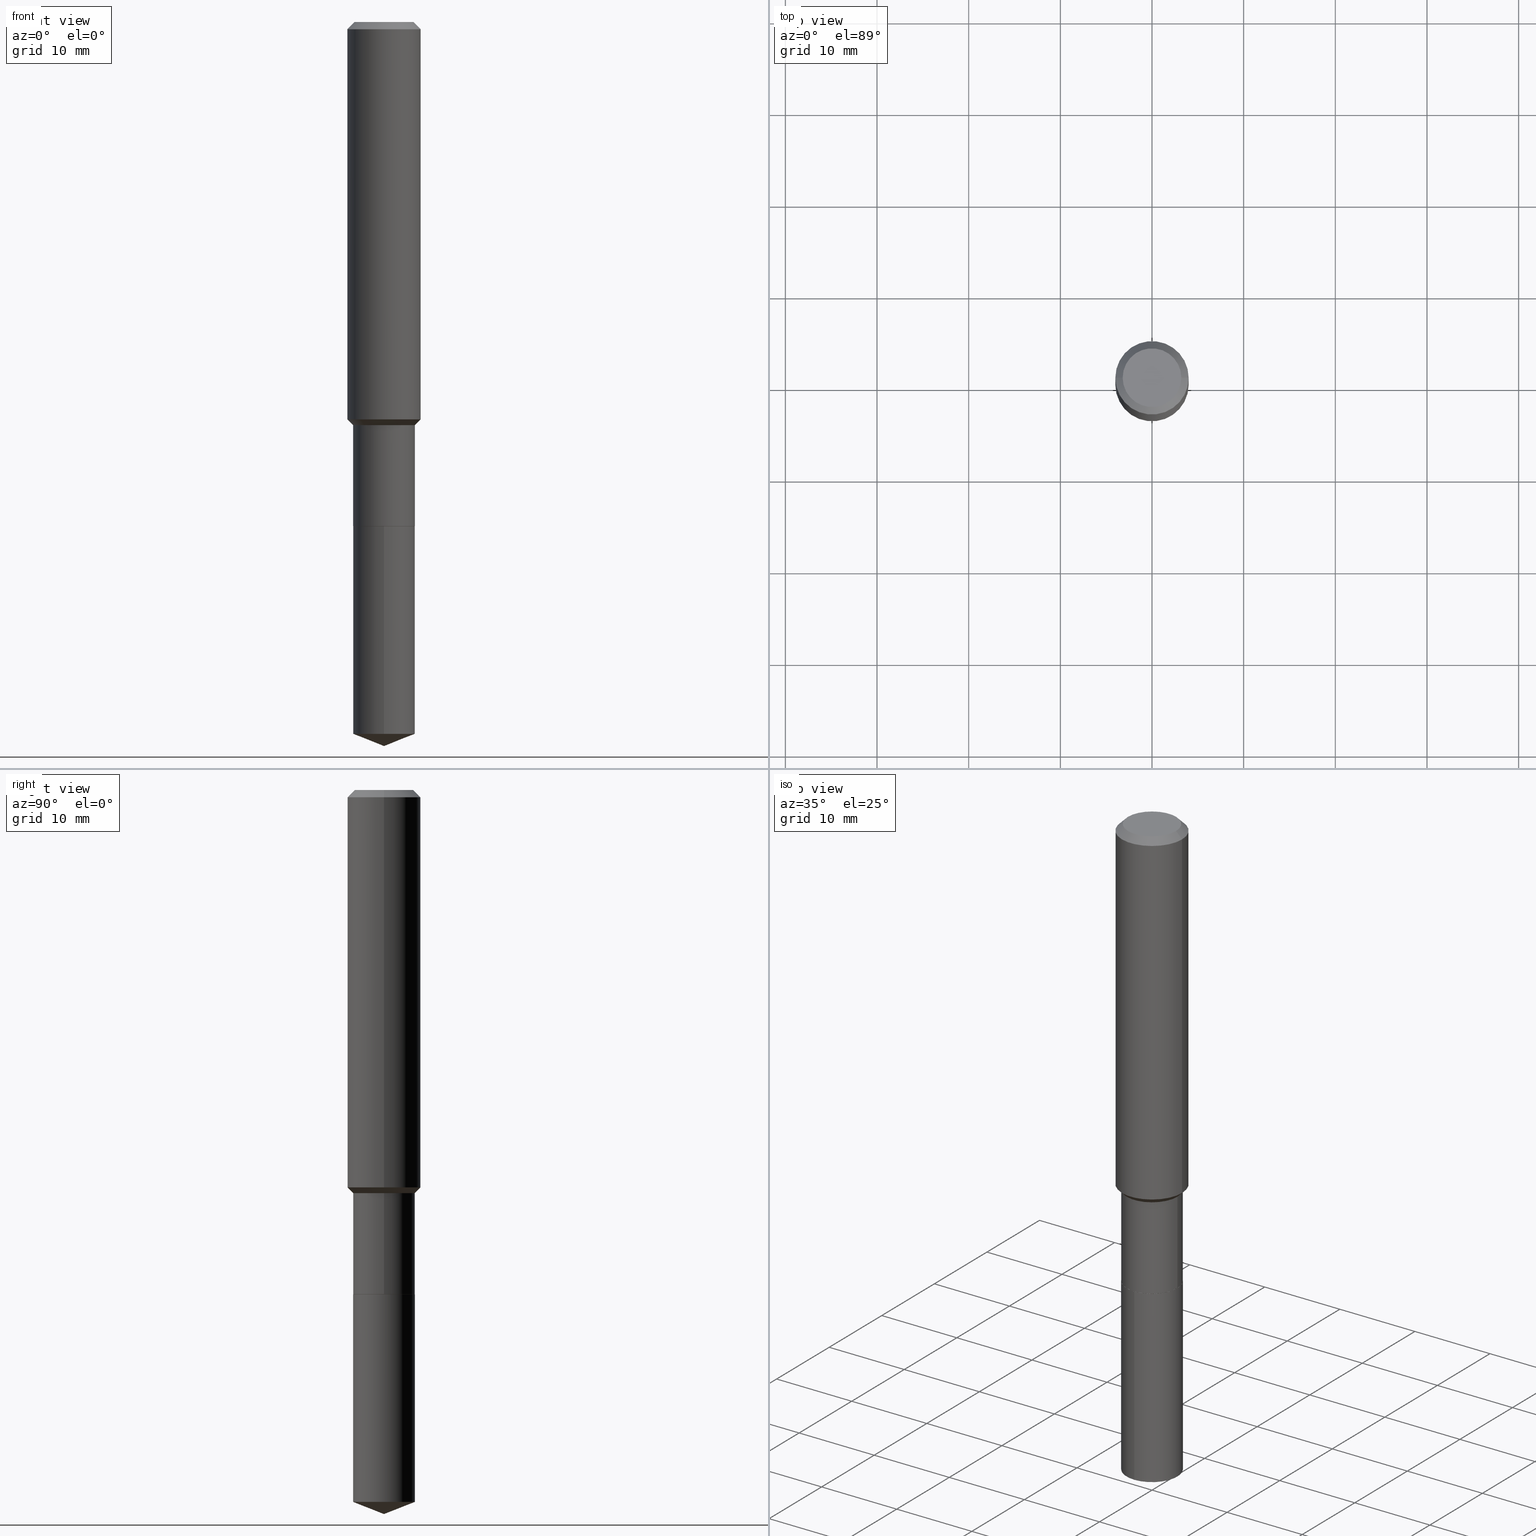
[diagram: canonical four-view strip — front | top / right | iso, engineering-drawing reading convention]
A machine part, canonical four-view strip (front | top / right | iso — engineering-drawing reading convention). The complete STEP part file that produces these views, byte-faithful:
ISO-10303-21;
HEADER;
FILE_DESCRIPTION (( 'STEP AP203' ),
    '1' );
FILE_NAME ('56412.STEP',
    '2024-04-24T17:20:51',
    ( '' ),
    ( '' ),
    'SwSTEP 2.0',
    'SolidWorks 2023',
    '' );
FILE_SCHEMA (( 'CONFIG_CONTROL_DESIGN' ));
ENDSEC;

DATA;
#1 = EDGE_CURVE ( 'NONE', #238, #464, #484, .T. ) ;
#2 = CONICAL_SURFACE ( 'NONE', #455, 99.94676754584068590, 1.195550537616121956 ) ;
#3 = DIRECTION ( 'NONE',  ( 1.000000000000000000, -6.982962677686265922E-15, 4.876176775795935793E-29 ) ) ;
#4 = ORIENTED_EDGE ( 'NONE', *, *, #290, .F. ) ;
#5 = DIRECTION ( 'NONE',  ( -2.445468806185136597E-29, 3.491481338843145583E-15, 1.000000000000000000 ) ) ;
#6 = DIRECTION ( 'NONE',  ( 1.000000000000000000, -6.982962677686266711E-15, 0.000000000000000000 ) ) ;
#7 = VERTEX_POINT ( 'NONE', #442 ) ;
#8 = LINE ( 'NONE', #201, #425 ) ;
#9 = AXIS2_PLACEMENT_3D ( 'NONE', #228, #381, #343 ) ;
#10 = CIRCLE ( 'NONE', #234, 0.1260000000000000009 ) ;
#11 = EDGE_CURVE ( 'NONE', #195, #238, #371, .T. ) ;
#12 = VERTEX_POINT ( 'NONE', #405 ) ;
#13 = VERTEX_POINT ( 'NONE', #254 ) ;
#14 = DIRECTION ( 'NONE',  ( -6.982962677686266711E-15, -1.000000000000000000, 3.498627837349979373E-15 ) ) ;
#15 = ORIENTED_EDGE ( 'NONE', *, *, #326, .T. ) ;
#16 = CARTESIAN_POINT ( 'NONE',  ( 5.295173606032675561E-29, -7.560104542997063911E-15, -2.165299999999999780 ) ) ;
#17 = ORIENTED_EDGE ( 'NONE', *, *, #280, .F. ) ;
#18 = DIRECTION ( 'NONE',  ( -2.445468806185136597E-29, 3.491481338843145583E-15, 1.000000000000000000 ) ) ;
#19 = AXIS2_PLACEMENT_3D ( 'NONE', #187, #339, #490 ) ;
#20 = AXIS2_PLACEMENT_3D ( 'NONE', #181, #336, #456 ) ;
#21 = PRODUCT ( '56412', '56412', '', ( #142 ) ) ;
#22 = CARTESIAN_POINT ( 'NONE',  ( 7.703226739483228723E-31, -1.099816621735597661E-16, -0.03150000000000019451 ) ) ;
#23 = CARTESIAN_POINT ( 'NONE',  ( 0.000000000000000000, 0.000000000000000000, 0.000000000000000000 ) ) ;
#24 = DIRECTION ( 'NONE',  ( 1.000000000000000000, -6.982962677686270655E-15, 0.000000000000000000 ) ) ;
#25 = PERSON_AND_ORGANIZATION ( #446, #59 ) ;
#26 = DIRECTION ( 'NONE',  ( 1.000000000000000000, -6.982962677686269866E-15, 0.000000000000000000 ) ) ;
#27 = CIRCLE ( 'NONE', #383, 0.1575000000000000011 ) ;
#28 = ADVANCED_FACE ( 'NONE', ( #414 ), #408, .T. ) ;
#29 = APPROVAL_PERSON_ORGANIZATION ( #404, #488, #444 ) ;
#30 =( NAMED_UNIT ( * ) PLANE_ANGLE_UNIT ( ) SI_UNIT ( $, .RADIAN. ) );
#31 = CARTESIAN_POINT ( 'NONE',  ( -0.1328499999999999404, -5.102242210017382798E-15, -1.731700000000000017 ) ) ;
#32 = COORDINATED_UNIVERSAL_TIME_OFFSET ( 5, 0, .BEHIND. ) ;
#33 = CARTESIAN_POINT ( 'NONE',  ( 5.295173606032675561E-29, -7.560104542997063911E-15, -2.165299999999999780 ) ) ;
#34 = APPROVAL_DATE_TIME ( #483, #388 ) ;
#35 = FACE_OUTER_BOUND ( 'NONE', #449, .T. ) ;
#36 = CIRCLE ( 'NONE', #360, 0.1328499999999999959 ) ;
#37 = APPROVAL_ROLE ( '' ) ;
#38 = CARTESIAN_POINT ( 'NONE',  ( 7.606279148417832493E-29, -1.085867462901663375E-14, -3.110199999999999854 ) ) ;
#39 = ORIENTED_EDGE ( 'NONE', *, *, #411, .T. ) ;
#40 = CARTESIAN_POINT ( 'NONE',  ( -0.1328499999999999404, -5.858322493943866365E-15, -1.731700000000000017 ) ) ;
#41 = ADVANCED_FACE ( 'NONE', ( #65 ), #485, .T. ) ;
#42 = CARTESIAN_POINT ( 'NONE',  ( -0.1575000000000000011, 9.898349595620272334E-16, -0.03150000000000019451 ) ) ;
#43 = AXIS2_PLACEMENT_3D ( 'NONE', #245, #47, #459 ) ;
#44 = LINE ( 'NONE', #38, #433 ) ;
#45 = DIRECTION ( 'NONE',  ( 2.445468806185136597E-29, -3.491481338843145583E-15, -1.000000000000000000 ) ) ;
#46 = EDGE_LOOP ( 'NONE', ( #49, #428, #283, #468 ) ) ;
#47 = DIRECTION ( 'NONE',  ( -2.445468806185136597E-29, 3.491481338843145583E-15, 1.000000000000000000 ) ) ;
#48 = EDGE_LOOP ( 'NONE', ( #97, #361, #91, #352 ) ) ;
#49 = ORIENTED_EDGE ( 'NONE', *, *, #280, .T. ) ;
#50 = CYLINDRICAL_SURFACE ( 'NONE', #217, 0.1328499999999999681 ) ;
#51 = CIRCLE ( 'NONE', #75, 0.1575000000000001954 ) ;
#52 = CARTESIAN_POINT ( 'NONE',  ( 0.000000000000000000, 0.000000000000000000, 0.000000000000000000 ) ) ;
#53 = ADVANCED_FACE ( 'NONE', ( #365 ), #467, .T. ) ;
#54 = ORIENTED_EDGE ( 'NONE', *, *, #457, .T. ) ;
#55 = DIRECTION ( 'NONE',  ( -6.982962677686265133E-15, -1.000000000000000000, 4.112680457153576388E-15 ) ) ;
#56 = COORDINATED_UNIVERSAL_TIME_OFFSET ( 5, 0, .BEHIND. ) ;
#57 = AXIS2_PLACEMENT_3D ( 'NONE', #33, #285, #180 ) ;
#58 = DIRECTION ( 'NONE',  ( -2.445165186319441374E-29, 3.491916139771790878E-15, 1.000000000000000000 ) ) ;
#59 = ORGANIZATION ( 'UNSPECIFIED', 'UNSPECIFIED', '' ) ;
#60 = ORIENTED_EDGE ( 'NONE', *, *, #141, .F. ) ;
#61 = PERSON_AND_ORGANIZATION ( #446, #59 ) ;
#62 = DIRECTION ( 'NONE',  ( 1.000000000000000000, -6.982962677686267499E-15, 4.876176775795936353E-29 ) ) ;
#63 = ORIENTED_EDGE ( 'NONE', *, *, #239, .F. ) ;
#64 = ADVANCED_FACE ( 'NONE', ( #323 ), #173, .T. ) ;
#65 = FACE_OUTER_BOUND ( 'NONE', #397, .T. ) ;
#66 = DIRECTION ( 'NONE',  ( -2.445468806185136597E-29, 3.491481338843145583E-15, 1.000000000000000000 ) ) ;
#67 = CARTESIAN_POINT ( 'NONE',  ( 7.703226739483228723E-31, -1.099816621735597661E-16, -0.03150000000000019451 ) ) ;
#68 = VECTOR ( 'NONE', #74, 39.37007874015748143 ) ;
#69 = CIRCLE ( 'NONE', #147, 0.1328499999999999959 ) ;
#70 =( CONVERSION_BASED_UNIT ( 'INCH', #215 ) LENGTH_UNIT ( ) NAMED_UNIT ( #368 ) );
#71 = ORIENTED_EDGE ( 'NONE', *, *, #463, .T. ) ;
#72 = ADVANCED_FACE ( 'NONE', ( #476 ), #410, .T. ) ;
#73 = CARTESIAN_POINT ( 'NONE',  ( 5.295173606032675561E-29, -7.560104542997063911E-15, -2.165299999999999780 ) ) ;
#74 = DIRECTION ( 'NONE',  ( -6.497071151882126147E-15, -0.9304175679820254619, 0.3665012267242948041 ) ) ;
#75 = AXIS2_PLACEMENT_3D ( 'NONE', #275, #18, #429 ) ;
#76 = EDGE_CURVE ( 'NONE', #237, #436, #208, .T. ) ;
#77 = DIRECTION ( 'NONE',  ( -1.000000000000000000, 6.982962677686265922E-15, -4.876176775795935793E-29 ) ) ;
#78 = CARTESIAN_POINT ( 'NONE',  ( 7.604952762490726839E-29, -1.086055757791822403E-14, -3.110199999999999854 ) ) ;
#79 = PLANE ( 'NONE',  #264 ) ;
#80 = CARTESIAN_POINT ( 'NONE',  ( 0.1328499999999999959, -8.486045394058262536E-15, -2.164800000000000058 ) ) ;
#81 = PRODUCT_DEFINITION ( 'UNKNOWN', '', #189, #426 ) ;
#82 = DIRECTION ( 'NONE',  ( -2.445468806185136877E-29, 3.491481338843145188E-15, 1.000000000000000000 ) ) ;
#83 = EDGE_LOOP ( 'NONE', ( #158, #168 ) ) ;
#84 = ORIENTED_EDGE ( 'NONE', *, *, #326, .F. ) ;
#85 = ORIENTED_EDGE ( 'NONE', *, *, #471, .T. ) ;
#86 = DIRECTION ( 'NONE',  ( -0.7071067811866199593, 7.493145998870616062E-15, 0.7071067811864750752 ) ) ;
#87 = EDGE_LOOP ( 'NONE', ( #71, #54 ) ) ;
#88 = CIRCLE ( 'NONE', #477, 0.1328499999999999404 ) ;
#89 = FACE_OUTER_BOUND ( 'NONE', #252, .T. ) ;
#90 = EDGE_CURVE ( 'NONE', #237, #238, #88, .T. ) ;
#91 = ORIENTED_EDGE ( 'NONE', *, *, #155, .T. ) ;
#92 = CARTESIAN_POINT ( 'NONE',  ( 7.477652234873619342E-29, -1.067688061661201906E-14, -3.057868993314555972 ) ) ;
#93 = ORIENTED_EDGE ( 'NONE', *, *, #247, .T. ) ;
#94 = APPLICATION_PROTOCOL_DEFINITION ( 'international standard', 'config_control_design', 1994, #135 ) ;
#95 = CARTESIAN_POINT ( 'NONE',  ( 0.000000000000000000, 0.000000000000000000, 0.000000000000000000 ) ) ;
#96 = DIRECTION ( 'NONE',  ( -2.445165186319441374E-29, 3.491916139771790878E-15, 1.000000000000000000 ) ) ;
#97 = ORIENTED_EDGE ( 'NONE', *, *, #315, .F. ) ;
#98 = AXIS2_PLACEMENT_3D ( 'NONE', #92, #314, #424 ) ;
#99 = ADVANCED_FACE ( 'NONE', ( #176 ), #174, .T. ) ;
#100 = COORDINATED_UNIVERSAL_TIME_OFFSET ( 5, 0, .BEHIND. ) ;
#101 = DIRECTION ( 'NONE',  ( -2.445468806185136597E-29, 3.491481338843145583E-15, 1.000000000000000000 ) ) ;
#102 = VERTEX_POINT ( 'NONE', #292 ) ;
#103 = APPROVAL_ROLE ( '' ) ;
#104 = DIRECTION ( 'NONE',  ( -2.445468806185136597E-29, 3.491481338843145583E-15, 1.000000000000000000 ) ) ;
#105 = EDGE_CURVE ( 'NONE', #102, #308, #255, .T. ) ;
#106 = SECURITY_CLASSIFICATION ( '', '', #114 ) ;
#107 = UNCERTAINTY_MEASURE_WITH_UNIT (LENGTH_MEASURE( 1.000000000000000082E-05 ), #70, 'distance_accuracy_value', 'NONE');
#108 = LINE ( 'NONE', #302, #295 ) ;
#109 = SHAPE_DEFINITION_REPRESENTATION ( #409, #338 ) ;
#110 = CARTESIAN_POINT ( 'NONE',  ( -0.1328499999999999959, -5.858322493943866365E-15, -2.164800000000000058 ) ) ;
#111 = LINE ( 'NONE', #113, #165 ) ;
#112 = CONICAL_SURFACE ( 'NONE', #159, 0.1328499999999999404, 0.7853981633974485010 ) ;
#113 = CARTESIAN_POINT ( 'NONE',  ( 9.439560244573457240E-16, 0.1328499999999924186, -2.165300000000000669 ) ) ;
#114 = SECURITY_CLASSIFICATION_LEVEL ( 'unclassified' ) ;
#115 = DIRECTION ( 'NONE',  ( -2.445165186319441374E-29, 3.491916139771791272E-15, 1.000000000000000000 ) ) ;
#116 = CARTESIAN_POINT ( 'NONE',  ( 5.295173606032675561E-29, -7.560104542997063911E-15, -2.165299999999999780 ) ) ;
#117 = AXIS2_PLACEMENT_3D ( 'NONE', #95, #104, #249 ) ;
#118 = APPROVAL_PERSON_ORGANIZATION ( #248, #134, #103 ) ;
#119 = LINE ( 'NONE', #316, #127 ) ;
#120 = DIRECTION ( 'NONE',  ( -2.445468806185136597E-29, 3.491481338843145583E-15, 1.000000000000000000 ) ) ;
#121 = ORIENTED_EDGE ( 'NONE', *, *, #247, .F. ) ;
#122 = EDGE_CURVE ( 'NONE', #238, #237, #454, .T. ) ;
#123 = DIRECTION ( 'NONE',  ( -2.445468806185136877E-29, 3.491481338843145188E-15, 1.000000000000000000 ) ) ;
#124 = ORIENTED_EDGE ( 'NONE', *, *, #178, .F. ) ;
#125 = AXIS2_PLACEMENT_3D ( 'NONE', #73, #154, #184 ) ;
#126 = FACE_OUTER_BOUND ( 'NONE', #310, .T. ) ;
#127 = VECTOR ( 'NONE', #82, 39.37007874015748143 ) ;
#128 = ORIENTED_EDGE ( 'NONE', *, *, #105, .T. ) ;
#129 = DATE_AND_TIME ( #210, #335 ) ;
#130 = ORIENTED_EDGE ( 'NONE', *, *, #478, .T. ) ;
#131 = ORIENTED_EDGE ( 'NONE', *, *, #333, .F. ) ;
#132 = DIRECTION ( 'NONE',  ( 1.000000000000000000, -6.982962677686265922E-15, 4.876281427513067258E-29 ) ) ;
#133 = CARTESIAN_POINT ( 'NONE',  ( -0.1328499999999999681, 9.439560244572928704E-16, -6.534805267403641141E-30 ) ) ;
#134 = APPROVAL ( #287, 'UNSPECIFIED' ) ;
#135 = APPLICATION_CONTEXT ( 'configuration controlled 3d designs of mechanical parts and assemblies' ) ;
#136 = AXIS2_PLACEMENT_3D ( 'NONE', #226, #305, #262 ) ;
#137 = CARTESIAN_POINT ( 'NONE',  ( 0.1328499999999999404, -6.973884826205296191E-15, -1.731700000000000017 ) ) ;
#138 = APPROVAL_PERSON_ORGANIZATION ( #380, #388, #37 ) ;
#139 = CARTESIAN_POINT ( 'NONE',  ( -9.276865917305455812E-16, -0.1328500000000106540, -3.057868993314555528 ) ) ;
#140 = DIRECTION ( 'NONE',  ( -1.000000000000000000, 6.982962677686265922E-15, 0.000000000000000000 ) ) ;
#141 = EDGE_CURVE ( 'NONE', #445, #474, #487, .T. ) ;
#142 = MECHANICAL_CONTEXT ( 'NONE', #135, 'mechanical' ) ;
#143 = ORIENTED_EDGE ( 'NONE', *, *, #261, .T. ) ;
#144 = PERSON_AND_ORGANIZATION_ROLE ( 'design_supplier' ) ;
#145 = CARTESIAN_POINT ( 'NONE',  ( 5.295173606032675561E-29, -7.560104542997063911E-15, -2.165299999999999780 ) ) ;
#146 = VECTOR ( 'NONE', #415, 39.37007874015748143 ) ;
#147 = AXIS2_PLACEMENT_3D ( 'NONE', #206, #96, #284 ) ;
#148 = LINE ( 'NONE', #300, #341 ) ;
#149 = DIRECTION ( 'NONE',  ( -0.7071067811865451302, 2.468850131082231817E-15, -0.7071067811865499042 ) ) ;
#150 = EDGE_CURVE ( 'NONE', #7, #402, #231, .T. ) ;
#151 = MANIFOLD_SOLID_BREP ( 'Body-Move/Copy2[2]', #182 ) ;
#152 = LINE ( 'NONE', #260, #146 ) ;
#153 = AXIS2_PLACEMENT_3D ( 'NONE', #419, #266, #420 ) ;
#154 = DIRECTION ( 'NONE',  ( -2.445165186319441374E-29, 3.491916139771790878E-15, 1.000000000000000000 ) ) ;
#155 = EDGE_CURVE ( 'NONE', #332, #272, #148, .T. ) ;
#156 = DIRECTION ( 'NONE',  ( 2.438088387897960049E-29, -3.491481338843145188E-15, -1.000000000000000000 ) ) ;
#157 = DIRECTION ( 'NONE',  ( -2.445165186319441374E-29, 3.491916139771790878E-15, 1.000000000000000000 ) ) ;
#158 = ORIENTED_EDGE ( 'NONE', *, *, #385, .T. ) ;
#159 = AXIS2_PLACEMENT_3D ( 'NONE', #204, #120, #462 ) ;
#160 = LINE ( 'NONE', #356, #384 ) ;
#161 = ADVANCED_FACE ( 'NONE', ( #416 ), #241, .T. ) ;
#162 = CARTESIAN_POINT ( 'NONE',  ( 0.1575000000000001954, -7.059949841207779867E-15, -1.707049999999999734 ) ) ;
#163 = DIRECTION ( 'NONE',  ( -2.445165186319441374E-29, 3.491916139771790878E-15, 1.000000000000000000 ) ) ;
#164 = ORIENTED_EDGE ( 'NONE', *, *, #122, .T. ) ;
#165 = VECTOR ( 'NONE', #115, 39.37007874015748143 ) ;
#166 = CIRCLE ( 'NONE', #98, 0.1328499999999999959 ) ;
#167 = ORIENTED_EDGE ( 'NONE', *, *, #1, .T. ) ;
#168 = ORIENTED_EDGE ( 'NONE', *, *, #190, .T. ) ;
#169 = PERSON_AND_ORGANIZATION_ROLE ( 'design_owner' ) ;
#170 = CC_DESIGN_PERSON_AND_ORGANIZATION_ASSIGNMENT ( #61, #169, ( #21 ) ) ;
#171 = DIRECTION ( 'NONE',  ( -2.445468806185136597E-29, 3.491481338843145583E-15, 1.000000000000000000 ) ) ;
#172 = DIRECTION ( 'NONE',  ( 0.000000000000000000, 0.000000000000000000, 1.000000000000000000 ) ) ;
#173 = CYLINDRICAL_SURFACE ( 'NONE', #117, 0.1328499999999999681 ) ;
#174 = CONICAL_SURFACE ( 'NONE', #375, 0.1575000000000000011, 0.7853981633974449483 ) ;
#175 = AXIS2_PLACEMENT_3D ( 'NONE', #23, #101, #62 ) ;
#176 = FACE_OUTER_BOUND ( 'NONE', #294, .T. ) ;
#177 = CIRCLE ( 'NONE', #329, 0.1323499999999999954 ) ;
#178 = EDGE_CURVE ( 'NONE', #308, #402, #27, .T. ) ;
#179 = ORIENTED_EDGE ( 'NONE', *, *, #150, .F. ) ;
#180 = DIRECTION ( 'NONE',  ( 1.000000000000000000, -6.982962677686270655E-15, 0.000000000000000000 ) ) ;
#181 = CARTESIAN_POINT ( 'NONE',  ( 4.234818331670801367E-29, -6.046198234474675274E-15, -1.731700000000000017 ) ) ;
#182 = CLOSED_SHELL ( 'NONE', ( #41, #437, #214, #271, #354, #64, #301, #28, #99, #229, #185, #53 ) ) ;
#183 = CC_DESIGN_SECURITY_CLASSIFICATION ( #106, ( #189 ) ) ;
#184 = DIRECTION ( 'NONE',  ( -6.982962677686265133E-15, -1.000000000000000000, 4.112680457153576388E-15 ) ) ;
#185 = ADVANCED_FACE ( 'NONE', ( #382 ), #450, .F. ) ;
#186 = PERSON_AND_ORGANIZATION ( #446, #59 ) ;
#187 = CARTESIAN_POINT ( 'NONE',  ( 5.295173606032675561E-29, -7.560104542997063911E-15, -2.165299999999999780 ) ) ;
#188 = DIRECTION ( 'NONE',  ( 0.7071067811866199593, -2.468850131083015945E-15, 0.7071067811864750752 ) ) ;
#189 = PRODUCT_DEFINITION_FORMATION_WITH_SPECIFIED_SOURCE ( 'ANY', '', #21, .NOT_KNOWN. ) ;
#190 = EDGE_CURVE ( 'NONE', #13, #299, #349, .T. ) ;
#191 = DIRECTION ( 'NONE',  ( -2.445468806185136597E-29, 3.491481338843145583E-15, 1.000000000000000000 ) ) ;
#192 = DIRECTION ( 'NONE',  ( 2.445165186319440533E-29, -3.491916139771791272E-15, -1.000000000000000000 ) ) ;
#193 = EDGE_LOOP ( 'NONE', ( #130, #357, #438, #121 ) ) ;
#194 = CARTESIAN_POINT ( 'NONE',  ( -9.439721640706201686E-47, 1.347742071746726764E-32, 3.860086710912459732E-18 ) ) ;
#195 = VERTEX_POINT ( 'NONE', #110 ) ;
#196 = ORIENTED_EDGE ( 'NONE', *, *, #221, .F. ) ;
#197 = AXIS2_PLACEMENT_3D ( 'NONE', #16, #157, #307 ) ;
#198 = CARTESIAN_POINT ( 'NONE',  ( 9.439560244573678122E-16, 0.1328499999999893100, -3.057868993314556416 ) ) ;
#199 = ORIENTED_EDGE ( 'NONE', *, *, #478, .F. ) ;
#200 = EDGE_CURVE ( 'NONE', #445, #392, #44, .T. ) ;
#201 = CARTESIAN_POINT ( 'NONE',  ( -0.1575000000000000844, 1.119104808822158392E-15, -7.747322767151481189E-30 ) ) ;
#202 = ORIENTED_EDGE ( 'NONE', *, *, #155, .F. ) ;
#203 = ORIENTED_EDGE ( 'NONE', *, *, #1, .F. ) ;
#204 = CARTESIAN_POINT ( 'NONE',  ( 4.234818331670801367E-29, -6.046198234474675274E-15, -1.731700000000000017 ) ) ;
#205 = EDGE_CURVE ( 'NONE', #195, #272, #216, .T. ) ;
#206 = CARTESIAN_POINT ( 'NONE',  ( 7.477652234873619342E-29, -1.067688061661201906E-14, -3.057868993314555972 ) ) ;
#207 = LOCAL_TIME ( 13, 20, 51.00000000000000000, #372 ) ;
#208 = LINE ( 'NONE', #137, #286 ) ;
#209 = PRODUCT_RELATED_PRODUCT_CATEGORY ( 'detail', '', ( #21 ) ) ;
#210 = CALENDAR_DATE ( 2024, 24, 4 ) ;
#211 = EDGE_LOOP ( 'NONE', ( #369, #439, #85, #319 ) ) ;
#212 = APPROVAL_DATE_TIME ( #407, #134 ) ;
#213 = DIRECTION ( 'NONE',  ( -6.982962677686265133E-15, -1.000000000000000000, 4.112680457153576388E-15 ) ) ;
#214 = ADVANCED_FACE ( 'NONE', ( #489 ), #379, .T. ) ;
#215 = LENGTH_MEASURE_WITH_UNIT ( LENGTH_MEASURE( 0.02539999999999999897 ), #479 );
#216 = CIRCLE ( 'NONE', #136, 0.1328499999999999959 ) ;
#217 = AXIS2_PLACEMENT_3D ( 'NONE', #52, #306, #396 ) ;
#218 = ORIENTED_EDGE ( 'NONE', *, *, #463, .F. ) ;
#219 = DIRECTION ( 'NONE',  ( -2.445468806185136877E-29, 3.491481338843145188E-15, 1.000000000000000000 ) ) ;
#220 = CARTESIAN_POINT ( 'NONE',  ( 0.000000000000000000, 0.000000000000000000, 0.000000000000000000 ) ) ;
#221 = EDGE_CURVE ( 'NONE', #392, #13, #111, .T. ) ;
#222 = CALENDAR_DATE ( 2024, 24, 4 ) ;
#223 = DIRECTION ( 'NONE',  ( -2.438088387897960049E-29, 3.491481338843145188E-15, 1.000000000000000000 ) ) ;
#224 = AXIS2_PLACEMENT_3D ( 'NONE', #377, #223, #3 ) ;
#225 = AXIS2_PLACEMENT_3D ( 'NONE', #432, #465, #6 ) ;
#226 = CARTESIAN_POINT ( 'NONE',  ( 5.293950871629583880E-29, -7.558358802327641618E-15, -2.164800000000000058 ) ) ;
#227 = APPROVAL_STATUS ( 'not_yet_approved' ) ;
#228 = CARTESIAN_POINT ( 'NONE',  ( -8.866073572750232729E-28, 1.266173972733747384E-13, 36.25987874015748247 ) ) ;
#229 = ADVANCED_FACE ( 'NONE', ( #421 ), #79, .F. ) ;
#230 = PERSON_AND_ORGANIZATION_ROLE ( 'classification_officer' ) ;
#231 = LINE ( 'NONE', #268, #303 ) ;
#232 = AXIS2_PLACEMENT_3D ( 'NONE', #220, #5, #453 ) ;
#233 = CC_DESIGN_PERSON_AND_ORGANIZATION_ASSIGNMENT ( #186, #230, ( #106 ) ) ;
#234 = AXIS2_PLACEMENT_3D ( 'NONE', #194, #348, #324 ) ;
#235 = CARTESIAN_POINT ( 'NONE',  ( 7.703226739483228723E-31, -1.099816621735597661E-16, -0.03150000000000019451 ) ) ;
#236 = DIRECTION ( 'NONE',  ( -1.000000000000000000, 6.982962677686265922E-15, 0.000000000000000000 ) ) ;
#237 = VERTEX_POINT ( 'NONE', #448 ) ;
#238 = VERTEX_POINT ( 'NONE', #40 ) ;
#239 = EDGE_CURVE ( 'NONE', #12, #332, #327, .T. ) ;
#240 = CARTESIAN_POINT ( 'NONE',  ( 0.1323499999999999954, -8.484299653388840244E-15, -2.165299999999999780 ) ) ;
#241 = CONICAL_SURFACE ( 'NONE', #9, 99.94676754584068590, 1.195550537616121956 ) ;
#242 =( GEOMETRIC_REPRESENTATION_CONTEXT ( 3 ) GLOBAL_UNCERTAINTY_ASSIGNED_CONTEXT ( ( #107 ) ) GLOBAL_UNIT_ASSIGNED_CONTEXT ( ( #70, #30, #362 ) ) REPRESENTATION_CONTEXT ( 'NONE', 'WORKASPACE' ) );
#243 = ORIENTED_EDGE ( 'NONE', *, *, #90, .T. ) ;
#244 = CONICAL_SURFACE ( 'NONE', #447, 0.1575000000000000011, 0.7853981633974449483 ) ;
#245 = CARTESIAN_POINT ( 'NONE',  ( 4.174537525598337128E-29, -5.960133219472190809E-15, -1.707049999999999734 ) ) ;
#246 = FACE_OUTER_BOUND ( 'NONE', #211, .T. ) ;
#247 = EDGE_CURVE ( 'NONE', #474, #299, #108, .T. ) ;
#248 = PERSON_AND_ORGANIZATION ( #446, #59 ) ;
#249 = DIRECTION ( 'NONE',  ( 1.000000000000000000, -6.982962677686266711E-15, 4.876176775795935232E-29 ) ) ;
#250 = ORIENTED_EDGE ( 'NONE', *, *, #333, .T. ) ;
#251 = DIRECTION ( 'NONE',  ( 1.000000000000000000, 0.000000000000000000, 0.000000000000000000 ) ) ;
#252 = EDGE_LOOP ( 'NONE', ( #203, #164, #259, #346 ) ) ;
#253 = CALENDAR_DATE ( 2024, 24, 4 ) ;
#254 = CARTESIAN_POINT ( 'NONE',  ( 9.439560244573678122E-16, 0.1328499999999924464, -2.165300000000000669 ) ) ;
#255 = LINE ( 'NONE', #42, #277 ) ;
#256 = CARTESIAN_POINT ( 'NONE',  ( -0.1575000000000001954, -4.841028410650031628E-15, -1.707049999999999734 ) ) ;
#257 = VECTOR ( 'NONE', #482, 39.37007874015748143 ) ;
#258 = CC_DESIGN_APPROVAL ( #488, ( #81 ) ) ;
#259 = ORIENTED_EDGE ( 'NONE', *, *, #76, .T. ) ;
#260 = CARTESIAN_POINT ( 'NONE',  ( 0.1328499999999999681, -9.276865917306203258E-16, 6.478000846644898476E-30 ) ) ;
#261 = EDGE_CURVE ( 'NONE', #272, #237, #152, .T. ) ;
#262 = DIRECTION ( 'NONE',  ( 1.000000000000000000, -6.982962677686266711E-15, 0.000000000000000000 ) ) ;
#263 = CARTESIAN_POINT ( 'NONE',  ( -4.719860820353100843E-47, 6.738710358733633822E-33, 1.930043355456229866E-18 ) ) ;
#264 = AXIS2_PLACEMENT_3D ( 'NONE', #263, #156, #77 ) ;
#265 = CIRCLE ( 'NONE', #278, 0.1260000000000000009 ) ;
#266 = DIRECTION ( 'NONE',  ( -2.445468806185136597E-29, 3.491481338843145583E-15, 1.000000000000000000 ) ) ;
#267 = DATE_TIME_ROLE ( 'classification_date' ) ;
#268 = CARTESIAN_POINT ( 'NONE',  ( 0.1575000000000000011, -1.190510096822576026E-15, -0.03150000000000019451 ) ) ;
#269 = CARTESIAN_POINT ( 'NONE',  ( 0.1575000000000000011, -1.209798283909146741E-15, -0.03150000000000019451 ) ) ;
#270 = CARTESIAN_POINT ( 'NONE',  ( -8.866073572750232729E-28, 1.266173972733747384E-13, 36.25987874015748247 ) ) ;
#271 = ADVANCED_FACE ( 'NONE', ( #35 ), #376, .T. ) ;
#272 = VERTEX_POINT ( 'NONE', #80 ) ;
#273 = DIRECTION ( 'NONE',  ( -2.445468806185136597E-29, 3.491481338843145583E-15, 1.000000000000000000 ) ) ;
#274 = ORIENTED_EDGE ( 'NONE', *, *, #200, .T. ) ;
#275 = CARTESIAN_POINT ( 'NONE',  ( 4.174537525598337128E-29, -5.960133219472190809E-15, -1.707049999999999734 ) ) ;
#276 = ORIENTED_EDGE ( 'NONE', *, *, #190, .F. ) ;
#277 = VECTOR ( 'NONE', #149, 39.37007874015748143 ) ;
#278 = AXIS2_PLACEMENT_3D ( 'NONE', #281, #66, #132 ) ;
#279 = CARTESIAN_POINT ( 'NONE',  ( -0.1575000000000000011, -1.915952632000715952E-15, -0.03150000000000019451 ) ) ;
#280 = EDGE_CURVE ( 'NONE', #272, #195, #412, .T. ) ;
#281 = CARTESIAN_POINT ( 'NONE',  ( -9.439721640706201686E-47, 1.347742071746726764E-32, 3.860086710912459732E-18 ) ) ;
#282 = EDGE_LOOP ( 'NONE', ( #84, #63 ) ) ;
#283 = ORIENTED_EDGE ( 'NONE', *, *, #90, .F. ) ;
#284 = DIRECTION ( 'NONE',  ( -6.982962677686265133E-15, -1.000000000000000000, 4.112680457153576388E-15 ) ) ;
#285 = DIRECTION ( 'NONE',  ( -2.445468806185136597E-29, 3.491481338843145583E-15, 1.000000000000000000 ) ) ;
#286 = VECTOR ( 'NONE', #330, 39.37007874015748143 ) ;
#287 = APPROVAL_STATUS ( 'not_yet_approved' ) ;
#288 = CIRCLE ( 'NONE', #350, 0.1575000000000000011 ) ;
#289 = CARTESIAN_POINT ( 'NONE',  ( 4.234818331670801367E-29, -6.046198234474675274E-15, -1.731700000000000017 ) ) ;
#290 = EDGE_CURVE ( 'NONE', #464, #308, #8, .T. ) ;
#291 = DIRECTION ( 'NONE',  ( 1.000000000000000000, -6.982962677686265922E-15, 0.000000000000000000 ) ) ;
#292 = CARTESIAN_POINT ( 'NONE',  ( -0.1260000000000000009, 9.348441284752484904E-16, 3.860086710906114178E-18 ) ) ;
#293 = COORDINATED_UNIVERSAL_TIME_OFFSET ( 5, 0, .BEHIND. ) ;
#294 = EDGE_LOOP ( 'NONE', ( #179, #218, #128, #313 ) ) ;
#295 = VECTOR ( 'NONE', #373, 39.37007874015748143 ) ;
#296 = ORIENTED_EDGE ( 'NONE', *, *, #122, .F. ) ;
#297 = EDGE_CURVE ( 'NONE', #464, #436, #367, .T. ) ;
#298 = DIRECTION ( 'NONE',  ( 1.000000000000000000, -6.982962677686265922E-15, 0.000000000000000000 ) ) ;
#299 = VERTEX_POINT ( 'NONE', #427 ) ;
#300 = CARTESIAN_POINT ( 'NONE',  ( 0.1323499999999999954, -8.484299653388840244E-15, -2.165299999999999780 ) ) ;
#301 = ADVANCED_FACE ( 'NONE', ( #89 ), #112, .T. ) ;
#302 = CARTESIAN_POINT ( 'NONE',  ( -9.276865917305674721E-16, -0.1328500000000075454, -2.165299999999999336 ) ) ;
#303 = VECTOR ( 'NONE', #458, 39.37007874015748143 ) ;
#304 = LOCAL_TIME ( 13, 20, 51.00000000000000000, #32 ) ;
#305 = DIRECTION ( 'NONE',  ( -2.445468806185136597E-29, 3.491481338843145583E-15, 1.000000000000000000 ) ) ;
#306 = DIRECTION ( 'NONE',  ( -2.445468806185136597E-29, 3.491481338843145583E-15, 1.000000000000000000 ) ) ;
#307 = DIRECTION ( 'NONE',  ( -6.982962677686265133E-15, -1.000000000000000000, 4.112680457153576388E-15 ) ) ;
#308 = VERTEX_POINT ( 'NONE', #279 ) ;
#309 = CC_DESIGN_PERSON_AND_ORGANIZATION_ASSIGNMENT ( #322, #398, ( #81 ) ) ;
#310 = EDGE_LOOP ( 'NONE', ( #196, #334, #93, #276 ) ) ;
#311 = FACE_OUTER_BOUND ( 'NONE', #46, .T. ) ;
#312 = CC_DESIGN_PERSON_AND_ORGANIZATION_ASSIGNMENT ( #374, #144, ( #189 ) ) ;
#313 = ORIENTED_EDGE ( 'NONE', *, *, #178, .T. ) ;
#314 = DIRECTION ( 'NONE',  ( -2.445165186319441374E-29, 3.491916139771790878E-15, 1.000000000000000000 ) ) ;
#315 = EDGE_CURVE ( 'NONE', #12, #195, #160, .T. ) ;
#316 = CARTESIAN_POINT ( 'NONE',  ( 0.1575000000000000844, -1.099816621735587677E-15, 7.679978421878603638E-30 ) ) ;
#317 = AXIS2_PLACEMENT_3D ( 'NONE', #399, #58, #213 ) ;
#318 = CC_DESIGN_APPROVAL ( #134, ( #189 ) ) ;
#319 = ORIENTED_EDGE ( 'NONE', *, *, #105, .F. ) ;
#320 = MANIFOLD_SOLID_BREP ( 'Body-Move/Copy2[1]', #440 ) ;
#321 = ORIENTED_EDGE ( 'NONE', *, *, #471, .F. ) ;
#322 = PERSON_AND_ORGANIZATION ( #446, #59 ) ;
#323 = FACE_OUTER_BOUND ( 'NONE', #472, .T. ) ;
#324 = DIRECTION ( 'NONE',  ( 1.000000000000000000, -6.982962677686265922E-15, 4.876281427513067258E-29 ) ) ;
#325 = ORIENTED_EDGE ( 'NONE', *, *, #297, .T. ) ;
#326 = EDGE_CURVE ( 'NONE', #332, #12, #177, .T. ) ;
#327 = CIRCLE ( 'NONE', #19, 0.1323499999999999954 ) ;
#328 = PERSON_AND_ORGANIZATION_ROLE ( 'creator' ) ;
#329 = AXIS2_PLACEMENT_3D ( 'NONE', #345, #273, #386 ) ;
#330 = DIRECTION ( 'NONE',  ( 0.7071067811865476838, -2.468850131082258638E-15, 0.7071067811865473507 ) ) ;
#331 = CALENDAR_DATE ( 2024, 24, 4 ) ;
#332 = VERTEX_POINT ( 'NONE', #240 ) ;
#333 = EDGE_CURVE ( 'NONE', #436, #464, #51, .T. ) ;
#334 = ORIENTED_EDGE ( 'NONE', *, *, #422, .T. ) ;
#335 = LOCAL_TIME ( 13, 20, 51.00000000000000000, #293 ) ;
#336 = DIRECTION ( 'NONE',  ( -2.445468806185136597E-29, 3.491481338843145583E-15, 1.000000000000000000 ) ) ;
#337 = DIRECTION ( 'NONE',  ( 6.611014441532073689E-15, 0.9304175679820281264, 0.3665012267242882538 ) ) ;
#338 = ADVANCED_BREP_SHAPE_REPRESENTATION ( '56412', ( #320, #151, #418 ), #242 ) ;
#339 = DIRECTION ( 'NONE',  ( -2.445468806185136597E-29, 3.491481338843145583E-15, 1.000000000000000000 ) ) ;
#340 = CARTESIAN_POINT ( 'NONE',  ( 7.703226739483228723E-31, -1.099816621735597661E-16, -0.03150000000000019451 ) ) ;
#341 = VECTOR ( 'NONE', #188, 39.37007874015748143 ) ;
#342 = LOCAL_TIME ( 13, 20, 51.00000000000000000, #56 ) ;
#343 = DIRECTION ( 'NONE',  ( -6.982962677686266711E-15, -1.000000000000000000, 3.498627837349979373E-15 ) ) ;
#344 = ADVANCED_FACE ( 'NONE', ( #391 ), #358, .F. ) ;
#345 = CARTESIAN_POINT ( 'NONE',  ( 5.295173606032675561E-29, -7.560104542997063911E-15, -2.165299999999999780 ) ) ;
#346 = ORIENTED_EDGE ( 'NONE', *, *, #297, .F. ) ;
#347 = ORIENTED_EDGE ( 'NONE', *, *, #11, .F. ) ;
#348 = DIRECTION ( 'NONE',  ( -2.445468806185136597E-29, 3.491481338843145583E-15, 1.000000000000000000 ) ) ;
#349 = CIRCLE ( 'NONE', #125, 0.1328499999999999959 ) ;
#350 = AXIS2_PLACEMENT_3D ( 'NONE', #22, #413, #291 ) ;
#351 = ORIENTED_EDGE ( 'NONE', *, *, #141, .T. ) ;
#352 = ORIENTED_EDGE ( 'NONE', *, *, #205, .F. ) ;
#353 = FACE_OUTER_BOUND ( 'NONE', #394, .T. ) ;
#354 = ADVANCED_FACE ( 'NONE', ( #311 ), #50, .T. ) ;
#355 = ORIENTED_EDGE ( 'NONE', *, *, #76, .F. ) ;
#356 = CARTESIAN_POINT ( 'NONE',  ( -0.1323499999999999954, -6.619701232218570756E-15, -2.165299999999999780 ) ) ;
#357 = ORIENTED_EDGE ( 'NONE', *, *, #221, .T. ) ;
#358 = PLANE ( 'NONE',  #434 ) ;
#359 = VECTOR ( 'NONE', #219, 39.37007874015748143 ) ;
#360 = AXIS2_PLACEMENT_3D ( 'NONE', #116, #163, #55 ) ;
#361 = ORIENTED_EDGE ( 'NONE', *, *, #239, .T. ) ;
#362 =( NAMED_UNIT ( * ) SI_UNIT ( $, .STERADIAN. ) SOLID_ANGLE_UNIT ( ) );
#363 = ORIENTED_EDGE ( 'NONE', *, *, #411, .F. ) ;
#364 = DATE_TIME_ROLE ( 'creation_date' ) ;
#365 = FACE_OUTER_BOUND ( 'NONE', #48, .T. ) ;
#366 = DIRECTION ( 'NONE',  ( -2.445468806185136597E-29, 3.491481338843145583E-15, 1.000000000000000000 ) ) ;
#367 = CIRCLE ( 'NONE', #43, 0.1575000000000001954 ) ;
#368 = DIMENSIONAL_EXPONENTS ( 1.000000000000000000, 0.000000000000000000, 0.000000000000000000, 0.000000000000000000, 0.000000000000000000, 0.000000000000000000, 0.000000000000000000 ) ;
#369 = ORIENTED_EDGE ( 'NONE', *, *, #457, .F. ) ;
#370 = ADVANCED_FACE ( 'NONE', ( #126 ), #460, .T. ) ;
#371 = LINE ( 'NONE', #133, #359 ) ;
#372 = COORDINATED_UNIVERSAL_TIME_OFFSET ( 5, 0, .BEHIND. ) ;
#373 = DIRECTION ( 'NONE',  ( -2.445165186319441374E-29, 3.491916139771791272E-15, 1.000000000000000000 ) ) ;
#374 = PERSON_AND_ORGANIZATION ( #446, #59 ) ;
#375 = AXIS2_PLACEMENT_3D ( 'NONE', #67, #480, #140 ) ;
#376 = CONICAL_SURFACE ( 'NONE', #20, 0.1328499999999999404, 0.7853981633974485010 ) ;
#377 = CARTESIAN_POINT ( 'NONE',  ( 5.295173606032675561E-29, -7.560104542997063911E-15, -2.165299999999999780 ) ) ;
#378 = DATE_AND_TIME ( #486, #304 ) ;
#379 = CYLINDRICAL_SURFACE ( 'NONE', #232, 0.1575000000000000844 ) ;
#380 = PERSON_AND_ORGANIZATION ( #446, #59 ) ;
#381 = DIRECTION ( 'NONE',  ( -2.445165186319441374E-29, 3.491916139771790878E-15, 1.000000000000000000 ) ) ;
#382 = FACE_OUTER_BOUND ( 'NONE', #282, .T. ) ;
#383 = AXIS2_PLACEMENT_3D ( 'NONE', #340, #191, #298 ) ;
#384 = VECTOR ( 'NONE', #86, 39.37007874015748143 ) ;
#385 = EDGE_CURVE ( 'NONE', #299, #13, #36, .T. ) ;
#386 = DIRECTION ( 'NONE',  ( 1.000000000000000000, -6.982962677686270655E-15, 0.000000000000000000 ) ) ;
#387 = ORIENTED_EDGE ( 'NONE', *, *, #205, .T. ) ;
#388 = APPROVAL ( #227, 'UNSPECIFIED' ) ;
#389 = CARTESIAN_POINT ( 'NONE',  ( 7.604952762490726839E-29, -1.086055757791822403E-14, -3.110199999999999854 ) ) ;
#390 = EDGE_LOOP ( 'NONE', ( #4, #325, #39, #124 ) ) ;
#391 = FACE_OUTER_BOUND ( 'NONE', #83, .T. ) ;
#392 = VERTEX_POINT ( 'NONE', #198 ) ;
#393 = CARTESIAN_POINT ( 'NONE',  ( 5.295173606032675561E-29, -7.560104542997063911E-15, -2.165299999999999780 ) ) ;
#394 = EDGE_LOOP ( 'NONE', ( #395, #351, #461 ) ) ;
#395 = ORIENTED_EDGE ( 'NONE', *, *, #200, .F. ) ;
#396 = DIRECTION ( 'NONE',  ( 1.000000000000000000, -6.982962677686266711E-15, 4.876176775795935232E-29 ) ) ;
#397 = EDGE_LOOP ( 'NONE', ( #15, #406, #17, #202 ) ) ;
#398 = PERSON_AND_ORGANIZATION_ROLE ( 'creator' ) ;
#399 = CARTESIAN_POINT ( 'NONE',  ( 5.295173606032675561E-29, -7.560104542997063911E-15, -2.165299999999999780 ) ) ;
#400 = AXIS2_PLACEMENT_3D ( 'NONE', #145, #171, #24 ) ;
#401 = CC_DESIGN_APPROVAL ( #388, ( #106 ) ) ;
#402 = VERTEX_POINT ( 'NONE', #269 ) ;
#403 = CC_DESIGN_DATE_AND_TIME_ASSIGNMENT ( #129, #364, ( #81 ) ) ;
#404 = PERSON_AND_ORGANIZATION ( #446, #59 ) ;
#405 = CARTESIAN_POINT ( 'NONE',  ( -0.1323499999999999954, -6.617052005044459555E-15, -2.165299999999999780 ) ) ;
#406 = ORIENTED_EDGE ( 'NONE', *, *, #315, .T. ) ;
#407 = DATE_AND_TIME ( #253, #469 ) ;
#408 = CYLINDRICAL_SURFACE ( 'NONE', #175, 0.1575000000000000844 ) ;
#409 = PRODUCT_DEFINITION_SHAPE ( 'NONE', 'NONE',  #81 ) ;
#410 = CYLINDRICAL_SURFACE ( 'NONE', #317, 0.1328499999999999959 ) ;
#411 = EDGE_CURVE ( 'NONE', #436, #402, #119, .T. ) ;
#412 = CIRCLE ( 'NONE', #225, 0.1328499999999999959 ) ;
#413 = DIRECTION ( 'NONE',  ( -2.445468806185136597E-29, 3.491481338843145583E-15, 1.000000000000000000 ) ) ;
#414 = FACE_OUTER_BOUND ( 'NONE', #390, .T. ) ;
#415 = DIRECTION ( 'NONE',  ( -2.445468806185136877E-29, 3.491481338843145188E-15, 1.000000000000000000 ) ) ;
#416 = FACE_OUTER_BOUND ( 'NONE', #430, .T. ) ;
#417 = ADVANCED_FACE ( 'NONE', ( #353 ), #2, .T. ) ;
#418 = AXIS2_PLACEMENT_3D ( 'NONE', #473, #172, #251 ) ;
#419 = CARTESIAN_POINT ( 'NONE',  ( 4.234818331670801367E-29, -6.046198234474675274E-15, -1.731700000000000017 ) ) ;
#420 = DIRECTION ( 'NONE',  ( 1.000000000000000000, -6.982962677686269866E-15, 0.000000000000000000 ) ) ;
#421 = FACE_OUTER_BOUND ( 'NONE', #87, .T. ) ;
#422 = EDGE_CURVE ( 'NONE', #392, #474, #166, .T. ) ;
#423 = APPLICATION_CONTEXT ( 'configuration controlled 3d designs of mechanical parts and assemblies' ) ;
#424 = DIRECTION ( 'NONE',  ( -6.982962677686265133E-15, -1.000000000000000000, 4.112680457153576388E-15 ) ) ;
#425 = VECTOR ( 'NONE', #123, 39.37007874015748143 ) ;
#426 = DESIGN_CONTEXT ( 'detailed design', #423, 'design' ) ;
#427 = CARTESIAN_POINT ( 'NONE',  ( -9.276865917305674721E-16, -0.1328500000000075454, -2.165299999999999336 ) ) ;
#428 = ORIENTED_EDGE ( 'NONE', *, *, #11, .T. ) ;
#429 = DIRECTION ( 'NONE',  ( 1.000000000000000000, -6.982962677686265922E-15, 0.000000000000000000 ) ) ;
#430 = EDGE_LOOP ( 'NONE', ( #60, #274, #199 ) ) ;
#431 = CC_DESIGN_DATE_AND_TIME_ASSIGNMENT ( #378, #267, ( #106 ) ) ;
#432 = CARTESIAN_POINT ( 'NONE',  ( 5.293950871629583880E-29, -7.558358802327641618E-15, -2.164800000000000058 ) ) ;
#433 = VECTOR ( 'NONE', #337, 39.37007874015748143 ) ;
#434 = AXIS2_PLACEMENT_3D ( 'NONE', #393, #192, #466 ) ;
#435 = DIRECTION ( 'NONE',  ( -2.445165186319441374E-29, 3.491916139771790878E-15, 1.000000000000000000 ) ) ;
#436 = VERTEX_POINT ( 'NONE', #162 ) ;
#437 = ADVANCED_FACE ( 'NONE', ( #246 ), #244, .T. ) ;
#438 = ORIENTED_EDGE ( 'NONE', *, *, #385, .F. ) ;
#439 = ORIENTED_EDGE ( 'NONE', *, *, #150, .T. ) ;
#440 = CLOSED_SHELL ( 'NONE', ( #72, #161, #417, #370, #344 ) ) ;
#441 = APPROVAL_STATUS ( 'not_yet_approved' ) ;
#442 = CARTESIAN_POINT ( 'NONE',  ( 0.1260000000000000009, -1.027466422270894443E-15, 3.860086710919128072E-18 ) ) ;
#443 = ORIENTED_EDGE ( 'NONE', *, *, #290, .T. ) ;
#444 = APPROVAL_ROLE ( '' ) ;
#445 = VERTEX_POINT ( 'NONE', #389 ) ;
#446 = PERSON ( 'UNSPECIFIED', 'UNSPECIFIED', 'UNSPECIFIED', ('UNSPECIFIED'), ('UNSPECIFIED'), ('UNSPECIFIED') ) ;
#447 = AXIS2_PLACEMENT_3D ( 'NONE', #235, #45, #236 ) ;
#448 = CARTESIAN_POINT ( 'NONE',  ( 0.1328499999999999404, -6.973884826205296191E-15, -1.731700000000000017 ) ) ;
#449 = EDGE_LOOP ( 'NONE', ( #243, #167, #131, #355 ) ) ;
#450 = PLANE ( 'NONE',  #224 ) ;
#451 = CC_DESIGN_PERSON_AND_ORGANIZATION_ASSIGNMENT ( #25, #328, ( #189 ) ) ;
#452 = EDGE_LOOP ( 'NONE', ( #250, #443, #321, #363 ) ) ;
#453 = DIRECTION ( 'NONE',  ( 1.000000000000000000, -6.982962677686267499E-15, 4.876176775795936353E-29 ) ) ;
#454 = CIRCLE ( 'NONE', #153, 0.1328499999999999404 ) ;
#455 = AXIS2_PLACEMENT_3D ( 'NONE', #270, #435, #14 ) ;
#456 = DIRECTION ( 'NONE',  ( 1.000000000000000000, -6.982962677686269866E-15, 0.000000000000000000 ) ) ;
#457 = EDGE_CURVE ( 'NONE', #7, #102, #10, .T. ) ;
#458 = DIRECTION ( 'NONE',  ( 0.7071067811865451302, -7.319954787623248157E-15, -0.7071067811865499042 ) ) ;
#459 = DIRECTION ( 'NONE',  ( 1.000000000000000000, -6.982962677686265922E-15, 0.000000000000000000 ) ) ;
#460 = CYLINDRICAL_SURFACE ( 'NONE', #197, 0.1328499999999999959 ) ;
#461 = ORIENTED_EDGE ( 'NONE', *, *, #422, .F. ) ;
#462 = DIRECTION ( 'NONE',  ( 1.000000000000000000, -6.982962677686269866E-15, 0.000000000000000000 ) ) ;
#463 = EDGE_CURVE ( 'NONE', #102, #7, #265, .T. ) ;
#464 = VERTEX_POINT ( 'NONE', #256 ) ;
#465 = DIRECTION ( 'NONE',  ( -2.445468806185136597E-29, 3.491481338843145583E-15, 1.000000000000000000 ) ) ;
#466 = DIRECTION ( 'NONE',  ( 6.982962677686265922E-15, 1.000000000000000000, -3.491916139771791272E-15 ) ) ;
#467 = CONICAL_SURFACE ( 'NONE', #400, 0.1323499999999999954, 0.7853981633975507526 ) ;
#468 = ORIENTED_EDGE ( 'NONE', *, *, #261, .F. ) ;
#469 = LOCAL_TIME ( 13, 20, 51.00000000000000000, #100 ) ;
#470 = APPROVAL_DATE_TIME ( #481, #488 ) ;
#471 = EDGE_CURVE ( 'NONE', #402, #308, #288, .T. ) ;
#472 = EDGE_LOOP ( 'NONE', ( #347, #387, #143, #296 ) ) ;
#473 = CARTESIAN_POINT ( 'NONE',  ( 0.000000000000000000, 0.000000000000000000, 0.000000000000000000 ) ) ;
#474 = VERTEX_POINT ( 'NONE', #139 ) ;
#475 = APPLICATION_PROTOCOL_DEFINITION ( 'international standard', 'config_control_design', 1994, #423 ) ;
#476 = FACE_OUTER_BOUND ( 'NONE', #193, .T. ) ;
#477 = AXIS2_PLACEMENT_3D ( 'NONE', #289, #366, #26 ) ;
#478 = EDGE_CURVE ( 'NONE', #474, #392, #69, .T. ) ;
#479 =( LENGTH_UNIT ( ) NAMED_UNIT ( * ) SI_UNIT ( $, .METRE. ) );
#480 = DIRECTION ( 'NONE',  ( 2.445468806185136597E-29, -3.491481338843145583E-15, -1.000000000000000000 ) ) ;
#481 = DATE_AND_TIME ( #331, #342 ) ;
#482 = DIRECTION ( 'NONE',  ( -0.7071067811865476838, 7.493145998870354160E-15, 0.7071067811865473507 ) ) ;
#483 = DATE_AND_TIME ( #222, #207 ) ;
#484 = LINE ( 'NONE', #31, #257 ) ;
#485 = CONICAL_SURFACE ( 'NONE', #57, 0.1323499999999999954, 0.7853981633975507526 ) ;
#486 = CALENDAR_DATE ( 2024, 24, 4 ) ;
#487 = LINE ( 'NONE', #78, #68 ) ;
#488 = APPROVAL ( #441, 'UNSPECIFIED' ) ;
#489 = FACE_OUTER_BOUND ( 'NONE', #452, .T. ) ;
#490 = DIRECTION ( 'NONE',  ( 1.000000000000000000, -6.982962677686270655E-15, 0.000000000000000000 ) ) ;
ENDSEC;
END-ISO-10303-21;
